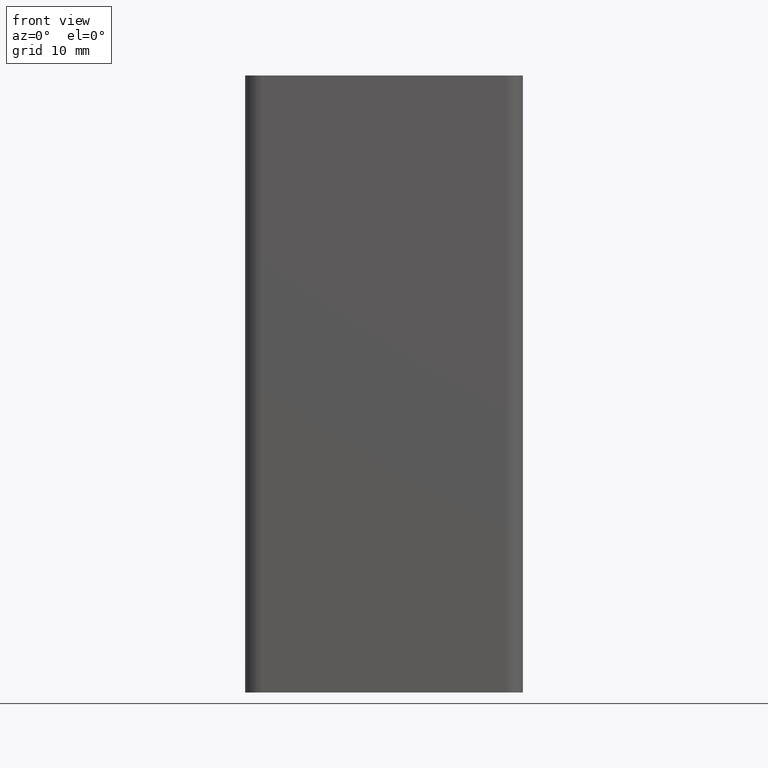
[diagram: clean part render]
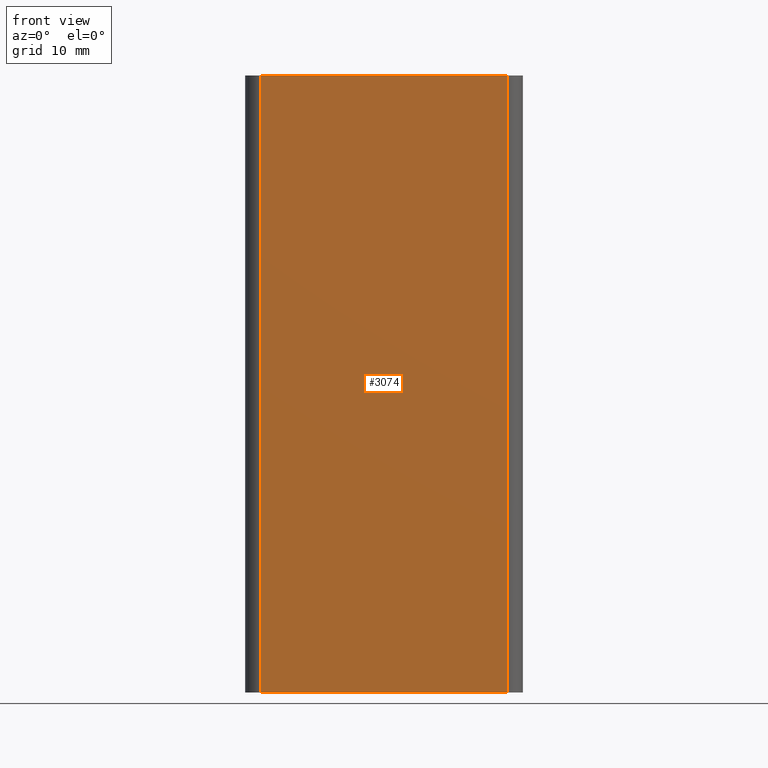
[diagram: same view with one face highlighted and labeled with its STEP entity id]
A machine part, front view. The second image highlights one B-rep face of the part: STEP entity #3074.
In plain terms, the highlighted planar face has unit normal (0, -1, 0).
Its self-contained STEP definition (entity closure, byte-faithful):
#459=FACE_OUTER_BOUND('',#615,.T.);
#615=EDGE_LOOP('',(#2532,#2533,#2534,#2535));
#898=LINE('',#5257,#1170);
#900=LINE('',#5263,#1172);
#901=LINE('',#5265,#1173);
#902=LINE('',#5266,#1174);
#1170=VECTOR('',#4334,100.);
#1172=VECTOR('',#4340,40.);
#1173=VECTOR('',#4341,100.);
#1174=VECTOR('',#4342,40.);
#1477=VERTEX_POINT('',#5254);
#1478=VERTEX_POINT('',#5256);
#1480=VERTEX_POINT('',#5262);
#1481=VERTEX_POINT('',#5264);
#1927=EDGE_CURVE('',#1478,#1477,#898,.T.);
#1930=EDGE_CURVE('',#1477,#1480,#900,.T.);
#1931=EDGE_CURVE('',#1481,#1480,#901,.T.);
#1932=EDGE_CURVE('',#1478,#1481,#902,.T.);
#2532=ORIENTED_EDGE('',*,*,#1930,.T.);
#2533=ORIENTED_EDGE('',*,*,#1931,.F.);
#2534=ORIENTED_EDGE('',*,*,#1932,.F.);
#2535=ORIENTED_EDGE('',*,*,#1927,.T.);
#2922=PLANE('',#3411);
#3074=ADVANCED_FACE('',(#459),#2922,.T.);
#3411=AXIS2_PLACEMENT_3D('',#5261,#4338,#4339);
#4334=DIRECTION('',(0.,0.,1.));
#4338=DIRECTION('center_axis',(0.,-1.,0.));
#4339=DIRECTION('ref_axis',(1.,0.,0.));
#4340=DIRECTION('',(-1.,0.,0.));
#4341=DIRECTION('',(0.,0.,1.));
#4342=DIRECTION('',(-1.,0.,0.));
#5254=CARTESIAN_POINT('',(20.,-22.5,100.));
#5256=CARTESIAN_POINT('',(20.,-22.5,0.));
#5257=CARTESIAN_POINT('',(20.,-22.5,0.));
#5261=CARTESIAN_POINT('Origin',(-20.,-22.5,0.));
#5262=CARTESIAN_POINT('',(-20.,-22.5,100.));
#5263=CARTESIAN_POINT('',(-10.,-22.5,100.));
#5264=CARTESIAN_POINT('',(-20.,-22.5,0.));
#5265=CARTESIAN_POINT('',(-20.,-22.5,0.));
#5266=CARTESIAN_POINT('',(-10.,-22.5,0.));